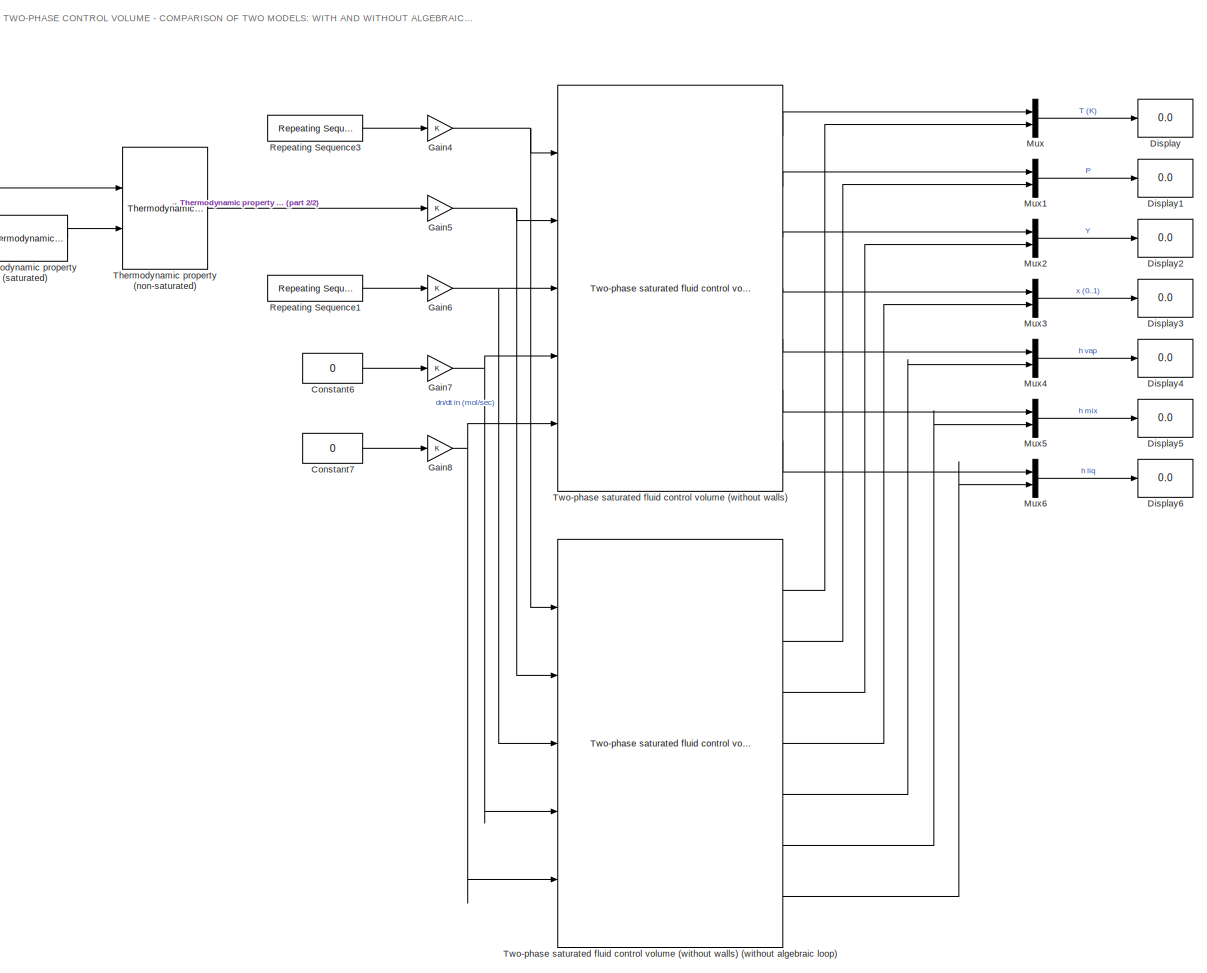
[diagram: root canvas - part 1/2, most of the canvas]
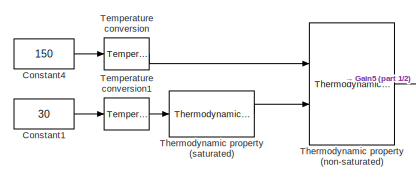
[diagram: root canvas - part 2/2, top left region]
MODEL slx_0d4ed4f24963
KIND model
CONFIG AbsTol = auto
CONFIG EnableMultiTasking = off
CONFIG FixedStep = auto
CONFIG MaxStep = 0.2
CONFIG MinStep = auto
CONFIG RelTol = 1e-3
CONFIG SampleTimeConstraint = Unconstrained
CONFIG Solver = ode23tb
CONFIG SolverName = ode23tb
CONFIG StartTime = 0.0
CONFIG StopTime = 400
BLOCK [Constant] Constant1
  Value = 30
BLOCK [Constant] Constant4
  Value = 150
BLOCK [Constant] Constant6
  Value = 0
BLOCK [Constant] Constant7
  Value = 0
BLOCK [Display] Display
  Decimation = 1
  Ports = [1]
BLOCK [Display] Display1
  Decimation = 1
  Ports = [1]
BLOCK [Display] Display2
  Decimation = 1
  Ports = [1]
BLOCK [Display] Display3
  Decimation = 1
  Ports = [1]
BLOCK [Display] Display4
  Decimation = 1
  Ports = [1]
BLOCK [Display] Display5
  Decimation = 1
  Ports = [1]
BLOCK [Display] Display6
  Decimation = 1
  Ports = [1]
BLOCK [Gain] Gain4
  OutDataTypeStr = Inherit: Inherit via internal rule
  ParamDataTypeStr = Inherit: Inherit via internal rule
  SaturateOnIntegerOverflow = off
BLOCK [Gain] Gain5
  OutDataTypeStr = Inherit: Inherit via internal rule
  ParamDataTypeStr = Inherit: Inherit via internal rule
  SaturateOnIntegerOverflow = off
BLOCK [Gain] Gain6
  OutDataTypeStr = Inherit: Inherit via internal rule
  ParamDataTypeStr = Inherit: Inherit via internal rule
  SaturateOnIntegerOverflow = off
BLOCK [Gain] Gain7
  OutDataTypeStr = Inherit: Inherit via internal rule
  ParamDataTypeStr = Inherit: Inherit via internal rule
  SaturateOnIntegerOverflow = off
BLOCK [Gain] Gain8
  OutDataTypeStr = Inherit: Inherit via internal rule
  ParamDataTypeStr = Inherit: Inherit via internal rule
  SaturateOnIntegerOverflow = off
BLOCK [Mux] Mux
  DisplayOption = bar
  Inputs = 2
  Ports = [2, 1]
BLOCK [Mux] Mux1
  DisplayOption = bar
  Inputs = 2
  Ports = [2, 1]
BLOCK [Mux] Mux2
  DisplayOption = bar
  Inputs = 2
  Ports = [2, 1]
BLOCK [Mux] Mux3
  DisplayOption = bar
  Inputs = 2
  Ports = [2, 1]
BLOCK [Mux] Mux4
  DisplayOption = bar
  Inputs = 2
  Ports = [2, 1]
BLOCK [Mux] Mux5
  DisplayOption = bar
  Inputs = 2
  Ports = [2, 1]
BLOCK [Mux] Mux6
  DisplayOption = bar
  Inputs = 2
  Ports = [2, 1]
BLOCK [Reference] Repeating Sequence1  REF=simulink/Sources/Repeating
Sequence
  Ports = [0, 1]
  SourceBlock = simulink/Sources/Repeating\nSequence
  SourceProductBaseCode = SL
  SourceProductName = Simulink
  SourceType = Repeating table
BLOCK [Reference] Repeating Sequence3  REF=simulink/Sources/Repeating
Sequence
  Ports = [0, 1]
  SourceBlock = simulink/Sources/Repeating\nSequence
  SourceProductBaseCode = SL
  SourceProductName = Simulink
  SourceType = Repeating table
BLOCK [Reference] Temperature conversion  REF=thermochemical/Conversions/Temperature  (lib defined in slx_f9e0643dc704)
conversion
  Ports = [1, 1]
  SourceBlock = thermochemical/Conversions/Temperature\nconversion
  SourceProductName = @ Thermochemical
  SourceType = convert_temperature
BLOCK [Reference] Temperature conversion1  REF=thermochemical/Conversions/Temperature  (lib defined in slx_f9e0643dc704)
conversion
  Ports = [1, 1]
  SourceBlock = thermochemical/Conversions/Temperature\nconversion
  SourceProductName = @ Thermochemical
  SourceType = convert_temperature
BLOCK [Reference] Thermodynamic property (non-saturated)  REF=thermochemical/Thermodynamic fluid properties/Thermodynamic   (lib defined in slx_f9e0643dc704)
property (non-saturated)
  Ports = [2, 1]
  SourceBlock = thermochemical/Thermodynamic fluid properties/Thermodynamic \nproperty (non-saturated)
  SourceProductName = @ Thermochemical
  SourceType = thermodynamic_properties_nonsaturated
BLOCK [Reference] Thermodynamic property (saturated)  REF=thermochemical/Thermodynamic fluid properties/Thermodynamic   (lib defined in slx_f9e0643dc704)
property (saturated)
  Ports = [1, 1]
  SourceBlock = thermochemical/Thermodynamic fluid properties/Thermodynamic \nproperty (saturated)
  SourceProductName = @ Thermochemical
  SourceType = thermodynamic_properties_saturated
BLOCK [Reference] Two-phase saturated fluid control volume (without walls)  REF=thermochemical/Control volumes/Two-phase saturated fluid  (lib defined in slx_f9e0643dc704)
control volume (without walls)
  Ports = [5, 7]
  SourceBlock = thermochemical/Control volumes/Two-phase saturated fluid\ncontrol volume (without walls)
  SourceProductName = @ Thermochemical
  SourceType = volume_control_saturated
BLOCK [Reference] Two-phase saturated fluid control volume (without walls) (without algebraic loop)  REF=thermochemical/Control volumes/Two-phase saturated fluid  (lib defined in slx_f9e0643dc704)
control volume (without walls)
(without algebraic loop)
  Ports = [5, 7]
  SourceBlock = thermochemical/Control volumes/Two-phase saturated fluid\ncontrol volume (without walls)\n(without algebraic loop)
  SourceProductName = @ Thermochemical
  SourceType = volume_control_saturated
ANNOTATION (root): TWO-PHASE CONTROL VOLUME - COMPARISON OF TWO MODELS: WITH AND WITHOUT ALGEBRAIC LOOP
LINE Constant1:1 -> Temperature conversion1:1
LINE Constant4:1 -> Temperature conversion:1
LINE Constant6:1 -> Gain7:1
LINE Constant7:1 -> Gain8:1
NET Gain4:1 -> Two-phase saturated fluid control volume (without walls) (without algebraic loop):1, Two-phase saturated fluid control volume (without walls):1
NET Gain5:1 -> Two-phase saturated fluid control volume (without walls) (without algebraic loop):2, Two-phase saturated fluid control volume (without walls):2
NET Gain6:1 -> Two-phase saturated fluid control volume (without walls) (without algebraic loop):3, Two-phase saturated fluid control volume (without walls):3
NET Gain7:1 -> Two-phase saturated fluid control volume (without walls) (without algebraic loop):4, Two-phase saturated fluid control volume (without walls):4
NET Gain8:1 -> Two-phase saturated fluid control volume (without walls) (without algebraic loop):5, Two-phase saturated fluid control volume (without walls):5
LINE Mux1:1 -> Display1:1
LINE Mux2:1 -> Display2:1
LINE Mux3:1 -> Display3:1
LINE Mux4:1 -> Display4:1
LINE Mux5:1 -> Display5:1
LINE Mux6:1 -> Display6:1
LINE Mux:1 -> Display:1
LINE Repeating Sequence1:1 -> Gain6:1
LINE Repeating Sequence3:1 -> Gain4:1
LINE Temperature conversion1:1 -> Thermodynamic property (saturated):1
LINE Temperature conversion:1 -> Thermodynamic property (non-saturated):1
LINE Thermodynamic property (non-saturated):1 -> Gain5:1
LINE Thermodynamic property (saturated):1 -> Thermodynamic property (non-saturated):2
LINE Two-phase saturated fluid control volume (without walls) (without algebraic loop):1 -> Mux:2
LINE Two-phase saturated fluid control volume (without walls) (without algebraic loop):2 -> Mux1:2
LINE Two-phase saturated fluid control volume (without walls) (without algebraic loop):3 -> Mux2:2
LINE Two-phase saturated fluid control volume (without walls) (without algebraic loop):4 -> Mux3:2
LINE Two-phase saturated fluid control volume (without walls) (without algebraic loop):5 -> Mux4:2
LINE Two-phase saturated fluid control volume (without walls) (without algebraic loop):6 -> Mux5:2
LINE Two-phase saturated fluid control volume (without walls) (without algebraic loop):7 -> Mux6:2
LINE Two-phase saturated fluid control volume (without walls):1 -> Mux:1
LINE Two-phase saturated fluid control volume (without walls):2 -> Mux1:1
LINE Two-phase saturated fluid control volume (without walls):3 -> Mux2:1
LINE Two-phase saturated fluid control volume (without walls):4 -> Mux3:1
LINE Two-phase saturated fluid control volume (without walls):5 -> Mux4:1
LINE Two-phase saturated fluid control volume (without walls):6 -> Mux5:1
LINE Two-phase saturated fluid control volume (without walls):7 -> Mux6:1
note: NET lines group one-source signal fan-out (src -> all destinations, sorted); 1:1 wires keep LINE
